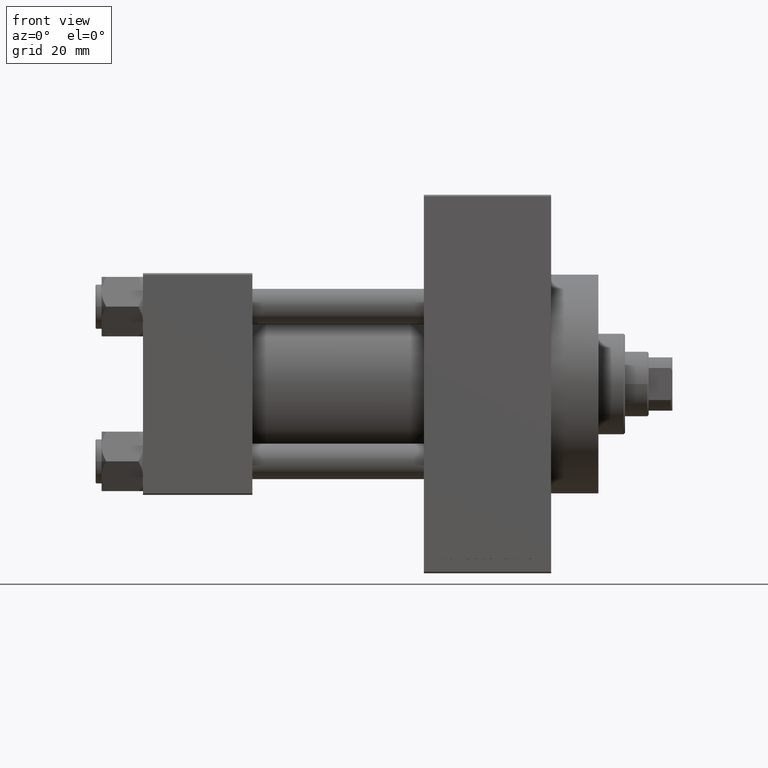
[diagram: clean part render]
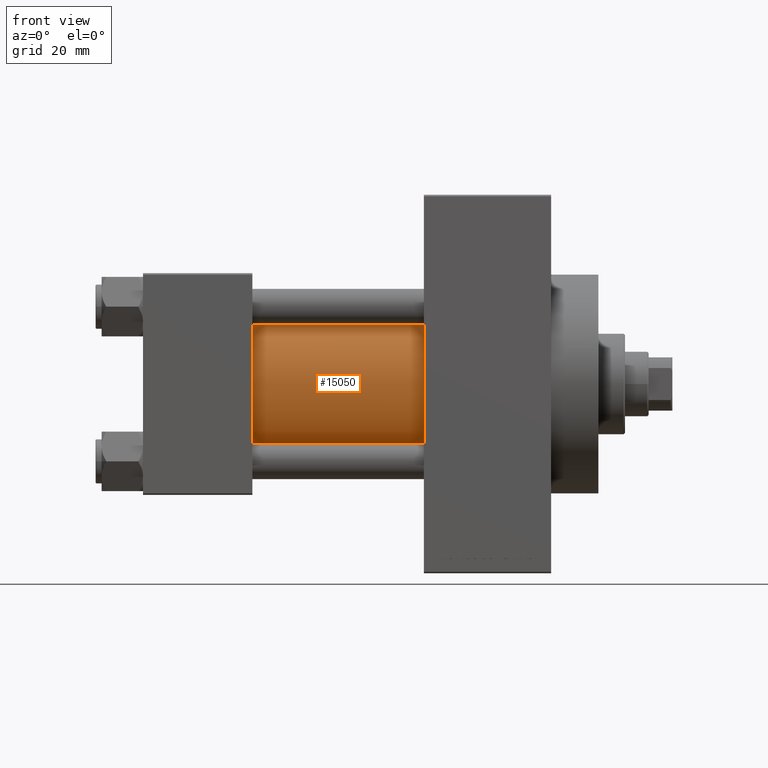
[diagram: same view with one face highlighted and labeled with its STEP entity id]
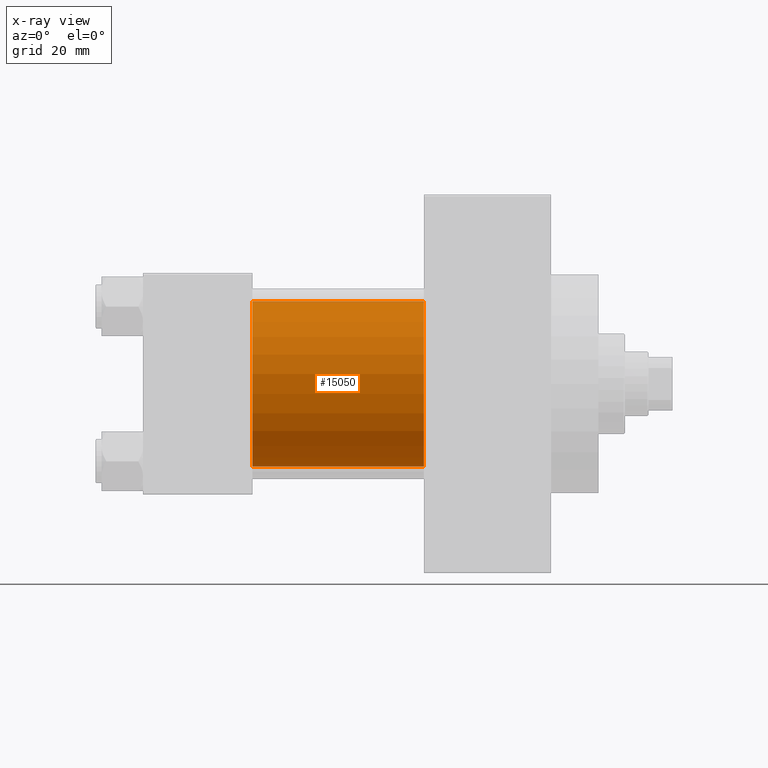
[diagram: x-ray of the same camera — body ghosted, the highlighted face saturated]
A machine part, front view. The second image highlights one B-rep face of the part: STEP entity #15050.
The next image is the same camera in x-ray: the body ghosted, the highlighted face saturated — about 2% of this face is hidden behind the body in this view.
In plain terms, the highlighted cylindrical surface (partial cylindrical patch) has radius 28 mm, axis along (-1, -0, -0).
Its self-contained STEP definition (entity closure, byte-faithful):
#9 = AXIS2_PLACEMENT_3D ( 'NONE', #7345, #4592, #30186 ) ;
#1120 = EDGE_CURVE ( 'NONE', #38650, #2418, #42662, .T. ) ;
#2418 = VERTEX_POINT ( 'NONE', #47072 ) ;
#2782 = DIRECTION ( 'NONE',  ( 0.000000000000000000, 0.000000000000000000, 1.000000000000000000 ) ) ;
#3871 = EDGE_CURVE ( 'NONE', #8148, #3906, #14927, .T. ) ;
#3906 = VERTEX_POINT ( 'NONE', #37296 ) ;
#4048 = EDGE_CURVE ( 'NONE', #38650, #8148, #20614, .T. ) ;
#4533 = ORIENTED_EDGE ( 'NONE', *, *, #4048, .F. ) ;
#4592 = DIRECTION ( 'NONE',  ( 1.000000000000000000, 0.000000000000000000, 0.000000000000000000 ) ) ;
#5392 = CARTESIAN_POINT ( 'NONE',  ( 37.00000000000000000, -2.602085213965210642E-15, 0.000000000000000000 ) ) ;
#7345 = CARTESIAN_POINT ( 'NONE',  ( 95.00000000000000000, -2.602085213965210642E-15, 0.000000000000000000 ) ) ;
#8148 = VERTEX_POINT ( 'NONE', #25744 ) ;
#13300 = EDGE_CURVE ( 'NONE', #2418, #3906, #25711, .T. ) ;
#13498 = VECTOR ( 'NONE', #42418, 1000.000000000000000 ) ;
#13584 = DIRECTION ( 'NONE',  ( 0.000000000000000000, 0.000000000000000000, 1.000000000000000000 ) ) ;
#14465 = CARTESIAN_POINT ( 'NONE',  ( 95.00000000000000000, -2.602085213965210642E-15, 0.000000000000000000 ) ) ;
#14927 = LINE ( 'NONE', #27255, #46911 ) ;
#15050 = ADVANCED_FACE ( 'NONE', ( #29368 ), #17204, .T. ) ;
#16086 = DIRECTION ( 'NONE',  ( -1.000000000000000000, -0.000000000000000000, -0.000000000000000000 ) ) ;
#17204 = CYLINDRICAL_SURFACE ( 'NONE', #17847, 28.00000000000000000 ) ;
#17847 = AXIS2_PLACEMENT_3D ( 'NONE', #14465, #47518, #2782 ) ;
#19315 = CARTESIAN_POINT ( 'NONE',  ( 95.00000000000000000, -2.602085213965210642E-15, 28.00000000000000000 ) ) ;
#19793 = CARTESIAN_POINT ( 'NONE',  ( 95.00000000000000000, -2.602085213965210642E-15, 28.00000000000000000 ) ) ;
#20614 = CIRCLE ( 'NONE', #9, 28.00000000000000000 ) ;
#20962 = AXIS2_PLACEMENT_3D ( 'NONE', #5392, #46890, #13584 ) ;
#22278 = EDGE_LOOP ( 'NONE', ( #22974, #4533, #45068, #45599 ) ) ;
#22974 = ORIENTED_EDGE ( 'NONE', *, *, #3871, .F. ) ;
#25711 = CIRCLE ( 'NONE', #20962, 28.00000000000000000 ) ;
#25744 = CARTESIAN_POINT ( 'NONE',  ( 95.00000000000000000, 8.269258236473776482E-16, -28.00000000000000000 ) ) ;
#27255 = CARTESIAN_POINT ( 'NONE',  ( 95.00000000000000000, 8.269258236473776482E-16, -28.00000000000000000 ) ) ;
#29368 = FACE_OUTER_BOUND ( 'NONE', #22278, .T. ) ;
#30186 = DIRECTION ( 'NONE',  ( 0.000000000000000000, 0.000000000000000000, -1.000000000000000000 ) ) ;
#37296 = CARTESIAN_POINT ( 'NONE',  ( 37.00000000000000000, 8.269258236473776482E-16, -28.00000000000000000 ) ) ;
#38650 = VERTEX_POINT ( 'NONE', #19315 ) ;
#42418 = DIRECTION ( 'NONE',  ( -1.000000000000000000, -0.000000000000000000, -0.000000000000000000 ) ) ;
#42662 = LINE ( 'NONE', #19793, #13498 ) ;
#45068 = ORIENTED_EDGE ( 'NONE', *, *, #1120, .T. ) ;
#45599 = ORIENTED_EDGE ( 'NONE', *, *, #13300, .T. ) ;
#46890 = DIRECTION ( 'NONE',  ( 1.000000000000000000, -0.000000000000000000, 0.000000000000000000 ) ) ;
#46911 = VECTOR ( 'NONE', #16086, 1000.000000000000000 ) ;
#47072 = CARTESIAN_POINT ( 'NONE',  ( 37.00000000000000000, -2.602085213965210642E-15, 28.00000000000000000 ) ) ;
#47518 = DIRECTION ( 'NONE',  ( -1.000000000000000000, -0.000000000000000000, -0.000000000000000000 ) ) ;